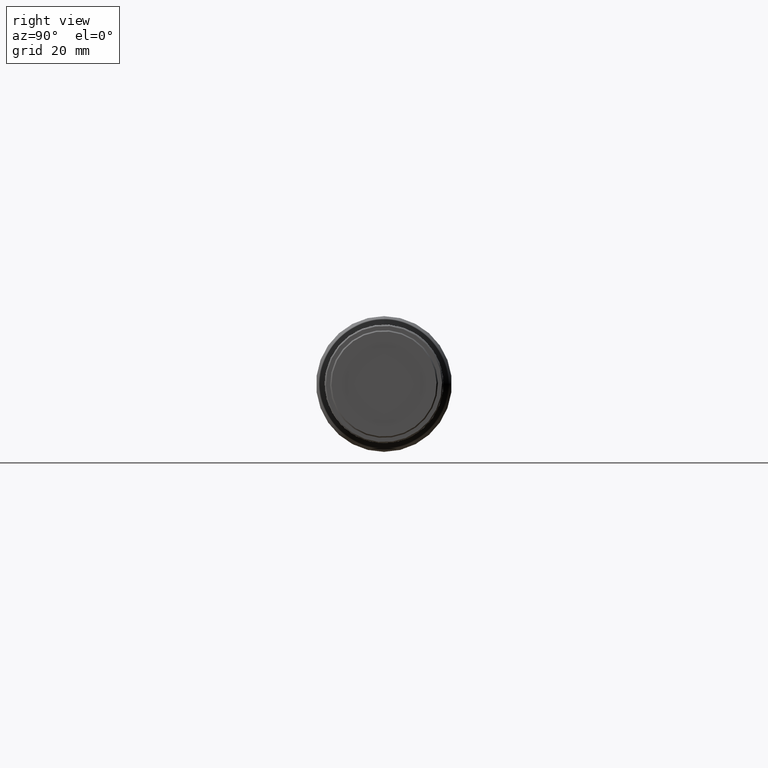
[diagram: clean part render]
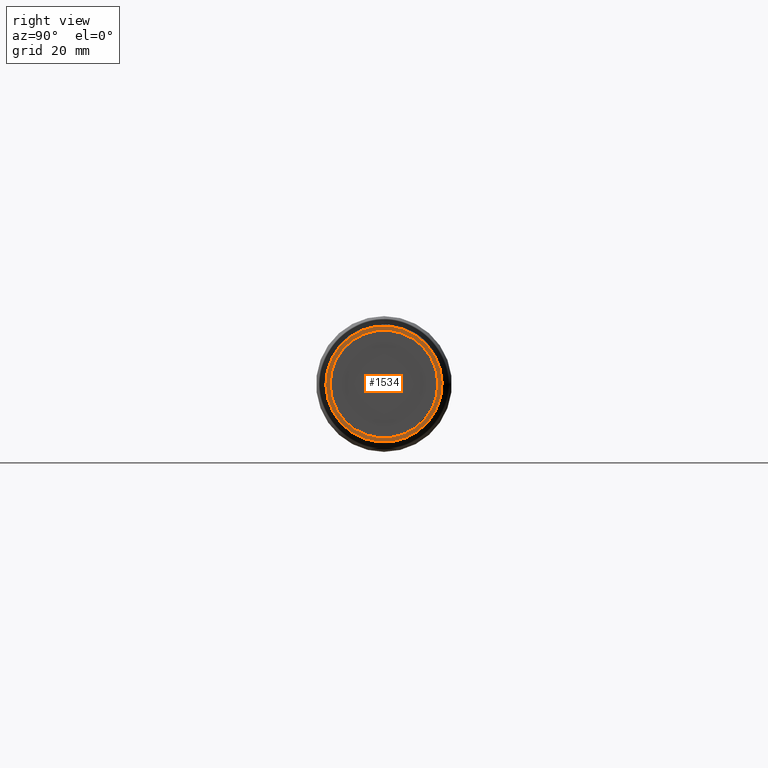
[diagram: same view with one face highlighted and labeled with its STEP entity id]
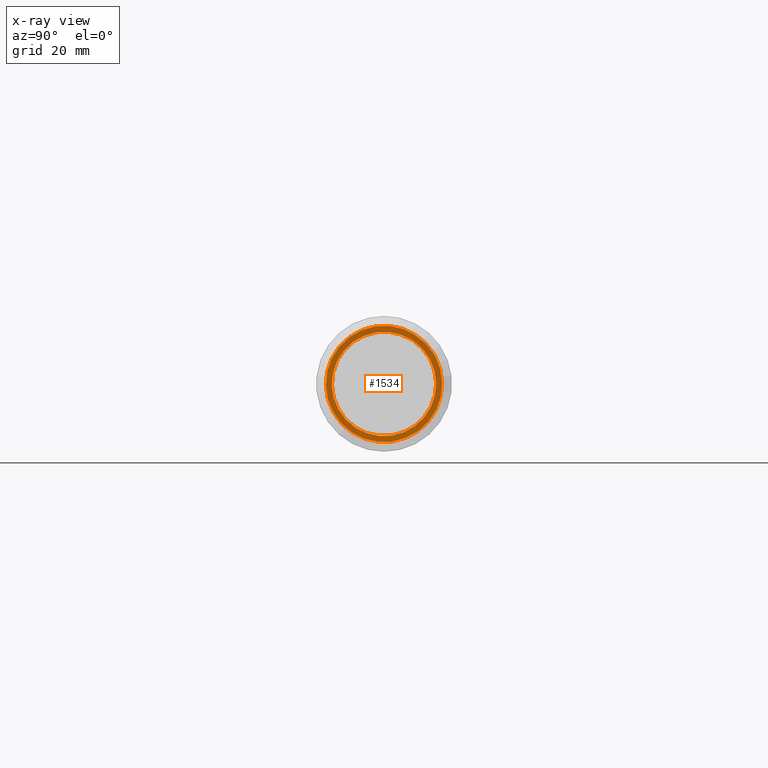
[diagram: x-ray of the same camera — body ghosted, the highlighted face saturated]
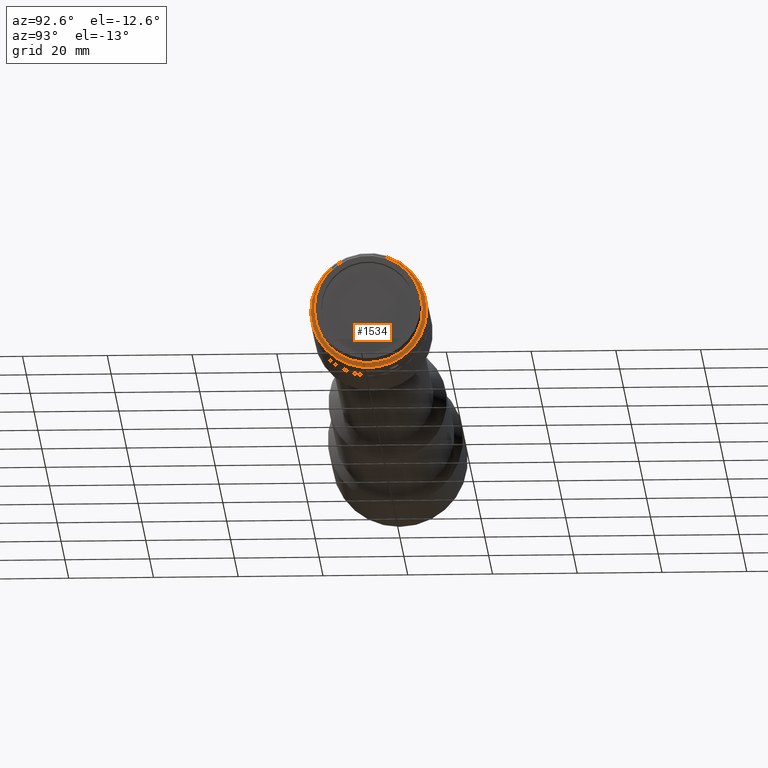
[diagram: same view with one face highlighted and labeled with its STEP entity id]
A machine part, right view. The second image highlights one B-rep face of the part: STEP entity #1534.
The next image is the same camera in x-ray: the body ghosted, the highlighted face saturated — about 0% of this face is hidden behind the body in this view.
A second angle (auxiliary view) of the same face is appended — the face is thin or edge-on in the first view.
In plain terms, the highlighted planar face has unit normal (-1, 0, 0).
Its self-contained STEP definition (entity closure, byte-faithful):
#4 = DIRECTION ( 'NONE',  ( 1.000000000000000000, -4.833225864060358700E-017, -3.124953162764342900E-016 ) ) ;
#53 = AXIS2_PLACEMENT_3D ( 'NONE', #1124, #4, #985 ) ;
#61 = EDGE_CURVE ( 'NONE', #1721, #81, #290, .T. ) ;
#81 = VERTEX_POINT ( 'NONE', #98 ) ;
#98 = CARTESIAN_POINT ( 'NONE',  ( 162.4189310000000100, 1.319303866677935800, 13.63632785273839200 ) ) ;
#155 = VERTEX_POINT ( 'NONE', #213 ) ;
#174 = DIRECTION ( 'NONE',  ( 3.156973372920036300E-016, 0.09629955231225803500, 0.9953523980101011100 ) ) ;
#213 = CARTESIAN_POINT ( 'NONE',  ( 162.4189310000000100, 1.184484493440775200, 12.24283449552424100 ) ) ;
#234 = CARTESIAN_POINT ( 'NONE',  ( 162.4189310000000100, 5.123219415903704000E-017, 3.312450352529911100E-016 ) ) ;
#237 = EDGE_CURVE ( 'NONE', #81, #1721, #642, .T. ) ;
#290 = CIRCLE ( 'NONE', #1175, 13.70000000000001000 ) ;
#315 = EDGE_LOOP ( 'NONE', ( #1286, #1787 ) ) ;
#317 = DIRECTION ( 'NONE',  ( -1.000000000000000000, 4.833225864060351300E-017, 3.124953162764336500E-016 ) ) ;
#364 = AXIS2_PLACEMENT_3D ( 'NONE', #1616, #317, #174 ) ;
#479 = CIRCLE ( 'NONE', #933, 12.30000000000001000 ) ;
#564 = CARTESIAN_POINT ( 'NONE',  ( 162.4189310000000100, -1.184484493440774800, -12.24283449552425300 ) ) ;
#642 = CIRCLE ( 'NONE', #53, 13.70000000000001000 ) ;
#693 = FACE_OUTER_BOUND ( 'NONE', #1169, .T. ) ;
#711 = DIRECTION ( 'NONE',  ( 0.0000000000000000000, -0.09629955231225803500, -0.9953523980101011100 ) ) ;
#718 = FACE_BOUND ( 'NONE', #315, .T. ) ;
#757 = PLANE ( 'NONE',  #364 ) ;
#779 = AXIS2_PLACEMENT_3D ( 'NONE', #234, #805, #1798 ) ;
#805 = DIRECTION ( 'NONE',  ( 1.000000000000000000, -4.833225864060358700E-017, -3.124953162764342900E-016 ) ) ;
#816 = CARTESIAN_POINT ( 'NONE',  ( 162.4189310000000100, 5.123219415903665800E-017, 3.312450352529911100E-016 ) ) ;
#933 = AXIS2_PLACEMENT_3D ( 'NONE', #1005, #1408, #711 ) ;
#953 = DIRECTION ( 'NONE',  ( 0.0000000000000000000, 0.09629955231225804900, 0.9953523980101011100 ) ) ;
#985 = DIRECTION ( 'NONE',  ( 0.0000000000000000000, 0.09629955231225804900, 0.9953523980101011100 ) ) ;
#1005 = CARTESIAN_POINT ( 'NONE',  ( 162.4189310000000100, 5.123219415903704000E-017, 3.312450352529911100E-016 ) ) ;
#1086 = CIRCLE ( 'NONE', #779, 12.30000000000001000 ) ;
#1099 = VERTEX_POINT ( 'NONE', #564 ) ;
#1110 = EDGE_CURVE ( 'NONE', #155, #1099, #479, .T. ) ;
#1124 = CARTESIAN_POINT ( 'NONE',  ( 162.4189310000000100, 5.123219415903665800E-017, 3.312450352529911100E-016 ) ) ;
#1169 = EDGE_LOOP ( 'NONE', ( #1744, #1722 ) ) ;
#1175 = AXIS2_PLACEMENT_3D ( 'NONE', #816, #1809, #953 ) ;
#1286 = ORIENTED_EDGE ( 'NONE', *, *, #1322, .F. ) ;
#1322 = EDGE_CURVE ( 'NONE', #1099, #155, #1086, .T. ) ;
#1408 = DIRECTION ( 'NONE',  ( 1.000000000000000000, -4.833225864060358700E-017, -3.124953162764342900E-016 ) ) ;
#1534 = ADVANCED_FACE ( 'NONE', ( #693, #718 ), #757, .F. ) ;
#1616 = CARTESIAN_POINT ( 'NONE',  ( 162.4189310000000100, 12.24283449552426400, -1.184484493440775200 ) ) ;
#1721 = VERTEX_POINT ( 'NONE', #1770 ) ;
#1722 = ORIENTED_EDGE ( 'NONE', *, *, #61, .T. ) ;
#1744 = ORIENTED_EDGE ( 'NONE', *, *, #237, .T. ) ;
#1770 = CARTESIAN_POINT ( 'NONE',  ( 162.4189310000000100, -1.319303866677934900, -13.63632785273839900 ) ) ;
#1787 = ORIENTED_EDGE ( 'NONE', *, *, #1110, .F. ) ;
#1798 = DIRECTION ( 'NONE',  ( 0.0000000000000000000, -0.09629955231225803500, -0.9953523980101011100 ) ) ;
#1809 = DIRECTION ( 'NONE',  ( 1.000000000000000000, -4.833225864060358700E-017, -3.124953162764342900E-016 ) ) ;